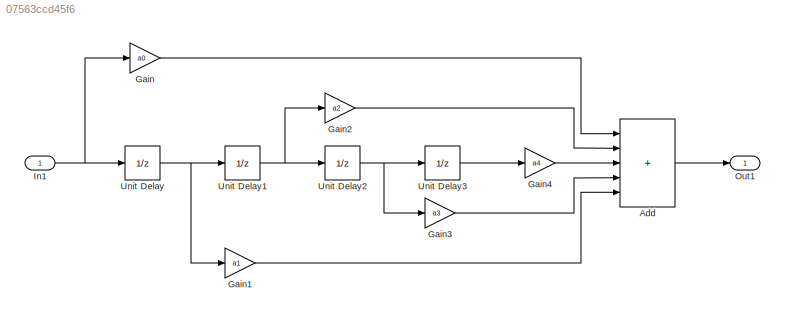
MODEL slx_07563ccd45f6
KIND model
CONFIG AbsTol = auto
CONFIG EnableMultiTasking = off
CONFIG FixedStep = auto
CONFIG MaxStep = auto
CONFIG MinStep = auto
CONFIG RelTol = 1e-3
CONFIG SampleTimeConstraint = Unconstrained
CONFIG SolverName = VariableStepAuto
CONFIG StartTime = 0.0
CONFIG StopTime = 10.0
WORKSPACE source: mxarray member
WORKSPACE a0 = 1
WORKSPACE a1 = 2
WORKSPACE a2 = -3
WORKSPACE a3 = -4
WORKSPACE a4 = 5
BLOCK [Sum] Add
  IconShape = rectangular
  Inputs = +++++
  Ports = [5, 1]
BLOCK [Gain] Gain
  Gain = a0
BLOCK [Gain] Gain1
  Gain = a1
BLOCK [Gain] Gain2
  Gain = a2
BLOCK [Gain] Gain3
  Gain = a3
BLOCK [Gain] Gain4
  Gain = a4
BLOCK [Inport] In1
  OutDataTypeStr = double
  PortDimensions = 1
  SampleTime = [0.20000000000000001,0]
  SamplingMode = Sample based
  SignalType = real
BLOCK [Outport] Out1
  OutDataTypeStr = double
  PortDimensions = 1
  SampleTime = [0.20000000000000001,0]
  SamplingMode = Sample based
  SignalType = real
BLOCK [UnitDelay] Unit Delay
  HasFrameUpgradeWarning = on
  SampleTime = -1
BLOCK [UnitDelay] Unit Delay1
  HasFrameUpgradeWarning = on
  SampleTime = -1
BLOCK [UnitDelay] Unit Delay2
  HasFrameUpgradeWarning = on
  SampleTime = -1
BLOCK [UnitDelay] Unit Delay3
  HasFrameUpgradeWarning = on
  SampleTime = -1
LINE Add:1 -> Out1:1
LINE Gain1:1 -> Add:5
LINE Gain2:1 -> Add:2
LINE Gain3:1 -> Add:4
LINE Gain4:1 -> Add:3
LINE Gain:1 -> Add:1
NET In1:1 -> Gain:1, Unit Delay:1
NET Unit Delay1:1 -> Gain2:1, Unit Delay2:1
NET Unit Delay2:1 -> Gain3:1, Unit Delay3:1
LINE Unit Delay3:1 -> Gain4:1
NET Unit Delay:1 -> Gain1:1, Unit Delay1:1
note: NET lines group one-source signal fan-out (src -> all destinations, sorted); 1:1 wires keep LINE
